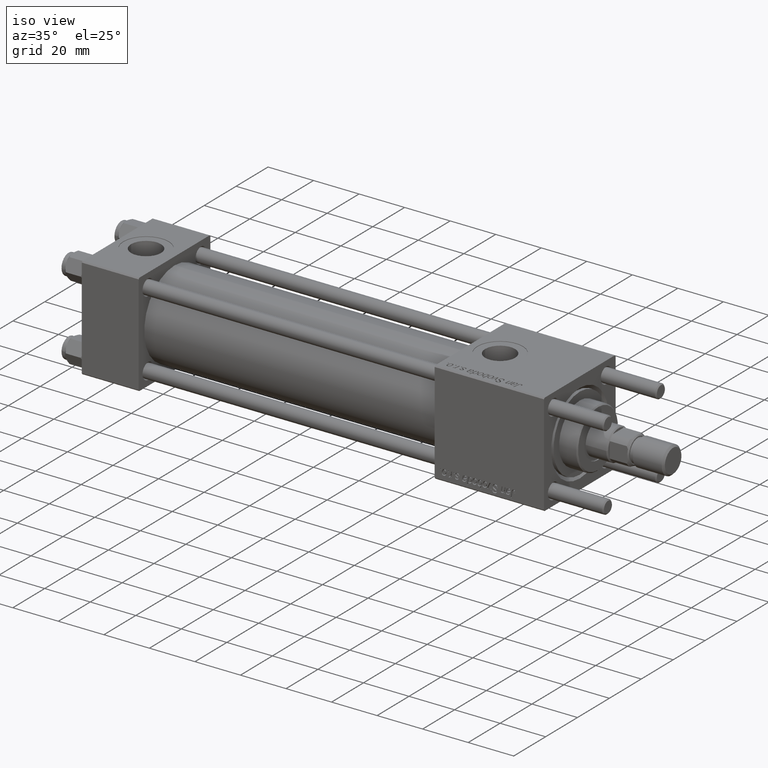
[diagram: clean part render]
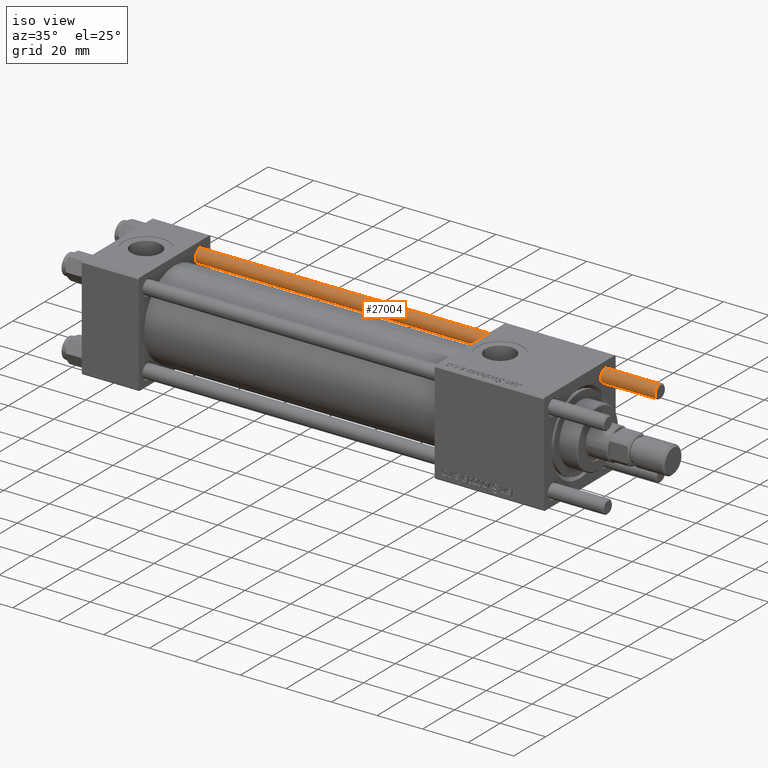
[diagram: same view with one face highlighted and labeled with its STEP entity id]
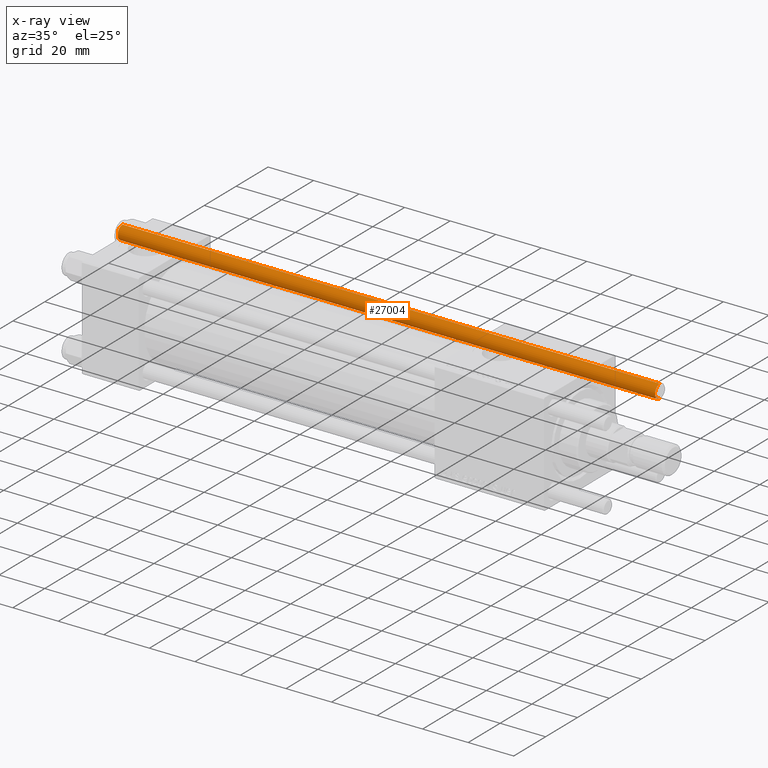
[diagram: x-ray of the same camera — body ghosted, the highlighted face saturated]
A machine part, iso view. The second image highlights one B-rep face of the part: STEP entity #27004.
The next image is the same camera in x-ray: the body ghosted, the highlighted face saturated — about 0% of this face is hidden behind the body in this view.
In plain terms, the highlighted cylindrical surface (edge-blend (fillet) strip) has radius 3 mm, axis along (1, -0, -0).
Its self-contained STEP definition (entity closure, byte-faithful):
#8244 = DIRECTION ( 'NONE',  ( 0.000000000000000000, 0.000000000000000000, -1.000000000000000000 ) ) ;
#10285 = VERTEX_POINT ( 'NONE', #35975 ) ;
#13149 = CARTESIAN_POINT ( 'NONE',  ( -3.000000000000000444, 0.000000000000000000, 237.0000000000000000 ) ) ;
#13408 = VECTOR ( 'NONE', #36411, 1000.000000000000000 ) ;
#14331 = LINE ( 'NONE', #28026, #13408 ) ;
#14441 = CIRCLE ( 'NONE', #29646, 3.000000000000000444 ) ;
#14650 = EDGE_CURVE ( 'NONE', #10285, #41937, #14331, .T. ) ;
#16085 = EDGE_CURVE ( 'NONE', #10285, #50511, #14441, .T. ) ;
#16645 = EDGE_CURVE ( 'NONE', #22963, #41937, #26815, .T. ) ;
#16693 = DIRECTION ( 'NONE',  ( 1.000000000000000000, 0.000000000000000000, 0.000000000000000000 ) ) ;
#17508 = DIRECTION ( 'NONE',  ( 1.000000000000000000, 0.000000000000000000, 0.000000000000000000 ) ) ;
#19332 = ORIENTED_EDGE ( 'NONE', *, *, #14650, .F. ) ;
#20967 = DIRECTION ( 'NONE',  ( -0.000000000000000000, -0.000000000000000000, -1.000000000000000000 ) ) ;
#22963 = VERTEX_POINT ( 'NONE', #31375 ) ;
#23148 = EDGE_LOOP ( 'NONE', ( #19332, #30359, #31385, #38450 ) ) ;
#26033 = CYLINDRICAL_SURFACE ( 'NONE', #42224, 3.000000000000000444 ) ;
#26815 = CIRCLE ( 'NONE', #31583, 3.000000000000000444 ) ;
#27004 = ADVANCED_FACE ( 'NONE', ( #52877 ), #26033, .T. ) ;
#28026 = CARTESIAN_POINT ( 'NONE',  ( 3.000000000000000444, 3.673940397442060361E-16, 237.0000000000000000 ) ) ;
#29646 = AXIS2_PLACEMENT_3D ( 'NONE', #57171, #8244, #17508 ) ;
#29984 = VECTOR ( 'NONE', #49547, 1000.000000000000000 ) ;
#30359 = ORIENTED_EDGE ( 'NONE', *, *, #16085, .T. ) ;
#31375 = CARTESIAN_POINT ( 'NONE',  ( -3.000000000000000444, 0.000000000000000000, 0.5000000000000004441 ) ) ;
#31385 = ORIENTED_EDGE ( 'NONE', *, *, #31666, .T. ) ;
#31583 = AXIS2_PLACEMENT_3D ( 'NONE', #57553, #49186, #16693 ) ;
#31666 = EDGE_CURVE ( 'NONE', #50511, #22963, #45062, .T. ) ;
#35975 = CARTESIAN_POINT ( 'NONE',  ( 3.000000000000000444, 3.673940397442060361E-16, 236.5000000000000568 ) ) ;
#36411 = DIRECTION ( 'NONE',  ( -0.000000000000000000, -0.000000000000000000, -1.000000000000000000 ) ) ;
#38450 = ORIENTED_EDGE ( 'NONE', *, *, #16645, .T. ) ;
#39755 = CARTESIAN_POINT ( 'NONE',  ( 0.000000000000000000, 0.000000000000000000, 237.0000000000000000 ) ) ;
#41937 = VERTEX_POINT ( 'NONE', #46026 ) ;
#42224 = AXIS2_PLACEMENT_3D ( 'NONE', #39755, #20967, #48709 ) ;
#45062 = LINE ( 'NONE', #13149, #29984 ) ;
#46026 = CARTESIAN_POINT ( 'NONE',  ( 3.000000000000000444, 3.673940397442060361E-16, 0.5000000000000004441 ) ) ;
#48709 = DIRECTION ( 'NONE',  ( -1.000000000000000000, 0.000000000000000000, 0.000000000000000000 ) ) ;
#49186 = DIRECTION ( 'NONE',  ( -0.000000000000000000, -0.000000000000000000, 1.000000000000000000 ) ) ;
#49547 = DIRECTION ( 'NONE',  ( -0.000000000000000000, -0.000000000000000000, -1.000000000000000000 ) ) ;
#50511 = VERTEX_POINT ( 'NONE', #57521 ) ;
#52877 = FACE_OUTER_BOUND ( 'NONE', #23148, .T. ) ;
#57171 = CARTESIAN_POINT ( 'NONE',  ( 0.000000000000000000, 0.000000000000000000, 236.5000000000000568 ) ) ;
#57521 = CARTESIAN_POINT ( 'NONE',  ( -3.000000000000000444, 0.000000000000000000, 236.5000000000000568 ) ) ;
#57553 = CARTESIAN_POINT ( 'NONE',  ( 0.000000000000000000, 0.000000000000000000, 0.5000000000000004441 ) ) ;